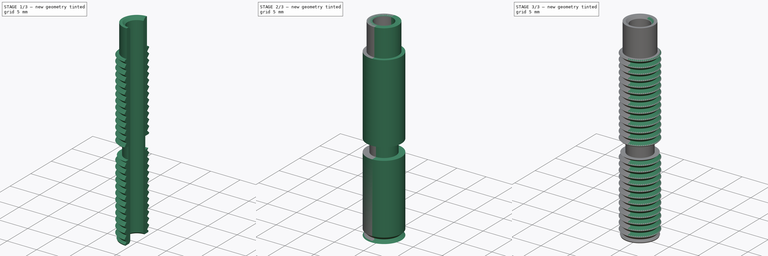
[diagram: build sequence overview — one tinted view per stage of 3, left to right]
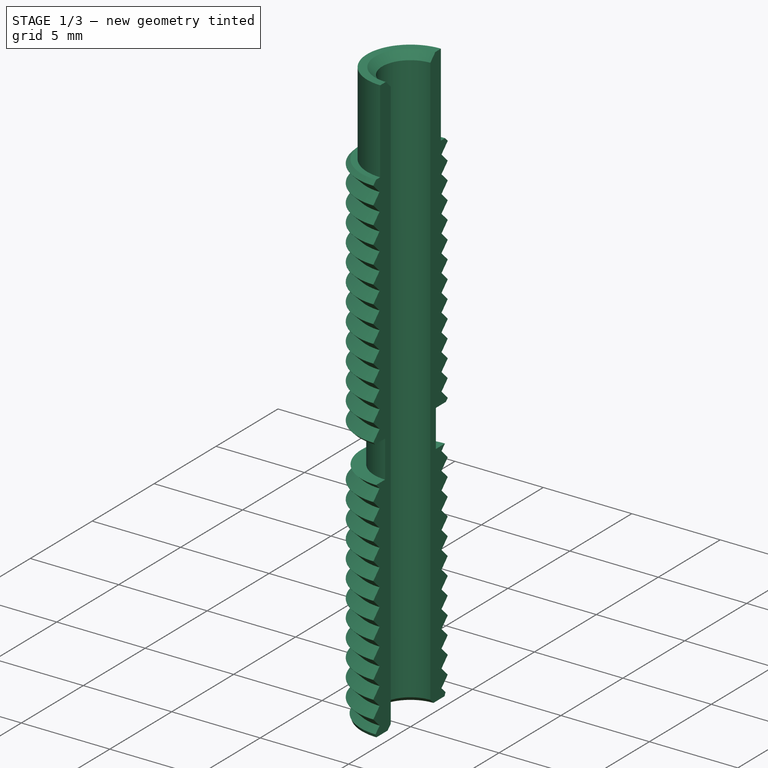
[diagram: stage 1 of 3 — iso view after this stage's code; geometry added in this stage tinted green]
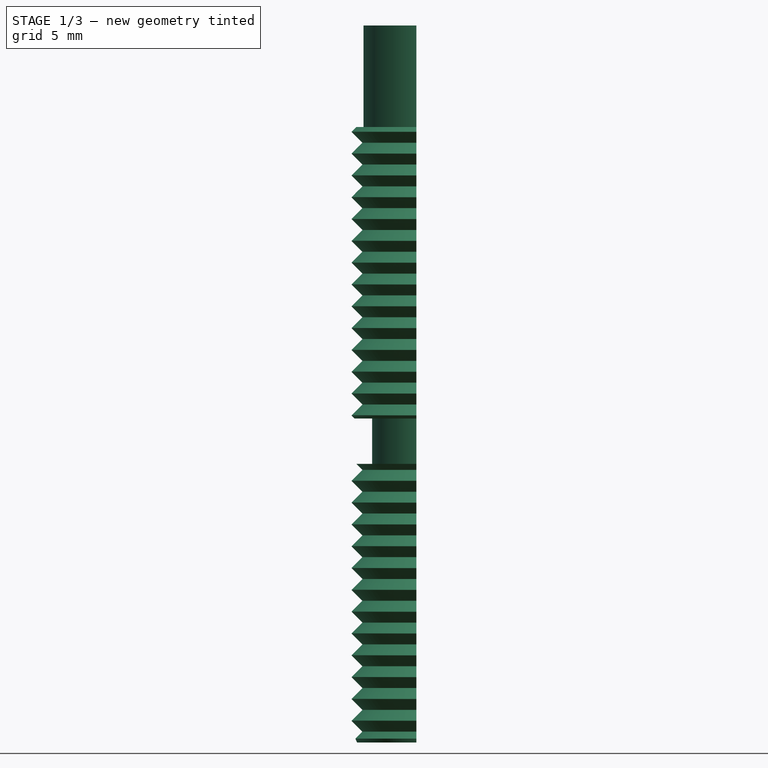
[diagram: stage 1 of 3 — front view after this stage's code; geometry added in this stage tinted green]
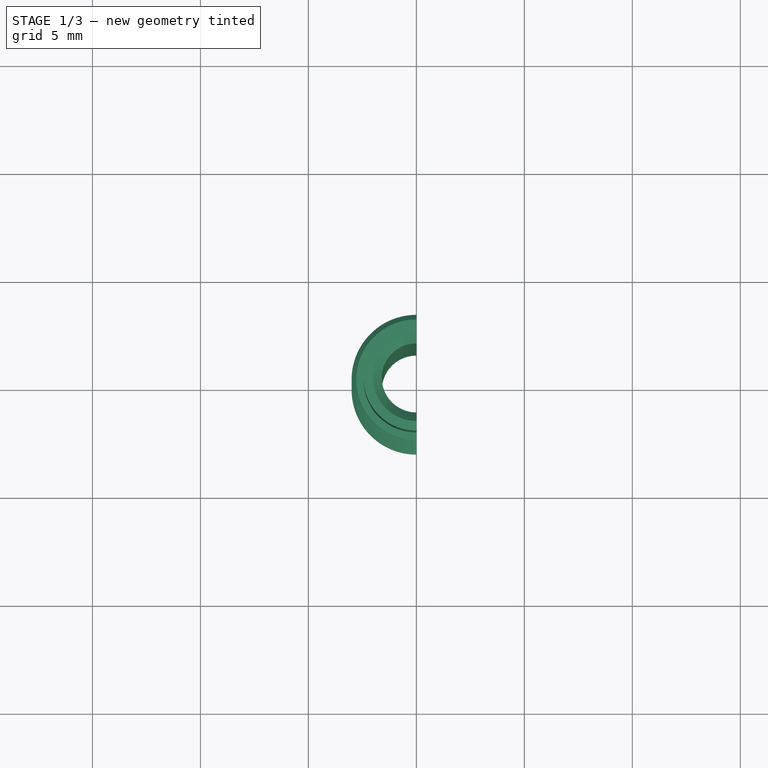
[diagram: stage 1 of 3 — top view after this stage's code; geometry added in this stage tinted green]
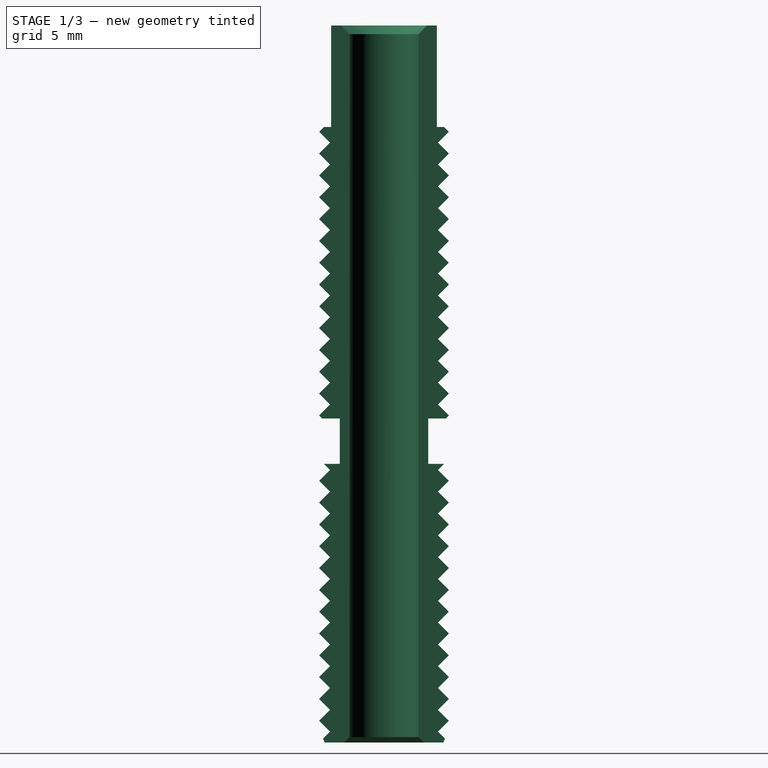
[diagram: stage 1 of 3 — right view after this stage's code; geometry added in this stage tinted green]
FCSTD DOCUMENT  (FreeCAD 0.17R13662 (Git))
Label: MOARstruder-heatbreak_PP-MP0152_revA
License: All rights reserved
LicenseURL: http://en.wikipedia.org/wiki/All_rights_reserved
objects: Drawing::FeatureView×39, Sketcher::SketchObject×4, Drawing::FeatureViewPart×4, PartDesign::LinearPattern×2, PartDesign::Chamfer×2, PartDesign::Pocket×2, PartDesign::Revolution×1, PartDesign::Groove×1, PartDesign::Body×1, Drawing::FeaturePage×1
note: 17 computed .brp shape members not serialized (recipe doc carries the construction recipe); baked Part::Feature solids carry a one-line shape summary decoded from their .brp

FEATURE [Sketcher::SketchObject] Sketch002
  MapMode = 5
  Placement = pos=(0,0,33.2) rot=(0,0,1;3.14159rad)
  sketch-geometry (4):
    g0: LineSegment StartX=0 StartY=-5 StartZ=0 EndX=-5 EndY=-5 EndZ=0
    g1: LineSegment StartX=-5 StartY=-5 StartZ=0 EndX=-5 EndY=5 EndZ=0
    g2: LineSegment StartX=-5 StartY=5 StartZ=0 EndX=0 EndY=5 EndZ=0
    g3: LineSegment StartX=0 StartY=5 StartZ=0 EndX=0 EndY=-5 EndZ=0
  constraints (12):
    c: Coincident(g0,g1)
    c: Coincident(g1,g2)
    c: Coincident(g2,g3)
    c: Coincident(g3,g0)
    c: Horizontal(g0)
    c: Horizontal(g2)
    c: Vertical(g1)
    c: Vertical(g3)
    c: PointOnObject(g0,g-2)
    c: Symmetric(g0,g2,g-1)
    c: DistanceY(g3,g3) = 10
    c: DistanceX(g2,g2) = 5
FEATURE [PartDesign::Pocket] Pocket
  Length = 5
  Length2 = 100
  Placement = pos=(0,0,0) rot=(1,0,0;1.5708rad)
  Type = 1
FEATURE [Sketcher::SketchObject] Sketch003
  MapMode = 5
  Placement = pos=(0,0,0) rot=(0.707107,0,0.707107;3.14159rad)
  sketch-geometry (4):
    g0: LineSegment StartX=1.5 StartY=4 StartZ=0 EndX=0.5 EndY=4 EndZ=0
    g1: LineSegment StartX=0.5 StartY=4 StartZ=0 EndX=-7.5 EndY=-4 EndZ=0
    g2: LineSegment StartX=-7.5 StartY=-4 StartZ=0 EndX=-6.5 EndY=-4 EndZ=0
    g3: LineSegment StartX=-6.5 StartY=-4 StartZ=0 EndX=1.5 EndY=4 EndZ=0
  constraints (12):
    c: Coincident(g0,g1)
    c: Coincident(g1,g2)
    c: Coincident(g2,g3)
    c: Coincident(g3,g0)
    c: Horizontal(g0)
    c: Horizontal(g2)
    c: Parallel(g3,g1)
    c: DistanceX(g2,g2) = 1
    c: DistanceY(g0) = 4
    c: DistanceY(g2) = -4
    c: Angle(g-1,g3) = 0.785398
    c: DistanceX(g0) = 0.5
FEATURE [PartDesign::Pocket] Pocket001
  Length = 0.001
  Length2 = 100
  Placement = pos=(0,0,0) rot=(1,0,0;1.5708rad)
  Type = 0
FEATURE [PartDesign::LinearPattern] LinearPattern001
  Length = 40
  Occurrences = 20
  Originals = -> [Pocket001]
  Placement = pos=(0,0,0) rot=(1,0,0;1.5708rad)
FEATURE [PartDesign::Body] Body
  Group = -> [Sketch,Revolution,Sketch001,Groove,LinearPattern,Chamfer,Chamfer001,Sketch002,Pocket,Sketch003,Pocket001,LinearPattern001]
FEATURE [Drawing::FeatureViewPart] Ortho  label="Ortho_0_0"
  Direction = (1,0,0)
  HiddenWidth = 0.15
  LineWidth = 0.35
  Rotation = -90
  Scale = 4
  ShowHiddenLines = false
  ShowSmoothLines = false
  Source = -> Chamfer001
  Tolerance = 0.05
  ViewResult = <blob: 56096 chars omitted>
  Visible = false
  X = 50
  Y = 192.47
FEATURE [Drawing::FeatureViewPart] Ortho001  label="Ortho_0_1"
  Direction = (0,0,1)
  HiddenWidth = 0.15
  LineWidth = 0.35
  Rotation = 90
  Scale = 4
  ShowHiddenLines = false
  ShowSmoothLines = false
  Source = -> Chamfer001
  Tolerance = 0.05
  ViewResult = <g id="Ortho_0_1"\n   transform="rotate(90,50,35) translate(50,35) scale(4,4)"\n  >\n<g   stroke="rgb(0, 0, 0)"\n   stroke-width="0.0875"\n   stroke-linecap="butt"\n   stroke-linejoin="miter"\n   fill="none"\n   transform="scale(1,-1)"\n  >\n<circle cx ="0" cy ="2.913e-14" r ="1.6" /><circle cx ="0" cy ="2.949e-14" r ="2" /><circle cx ="0" cy ="1.474e-14" r ="2.45" /><circle cx ="-9.42e-15" cy ="1.58e-14" r ="2.78283" /><circle cx ="-9e-15" cy ="1.6e-14" r ="3" /></g>\n</g>
  Visible = false
  X = 50
  Y = 35
FEATURE [Drawing::FeatureViewPart] Ortho002  label="Ortho_0_002"
  Direction = (1,0,0)
  HiddenWidth = 0.15
  LineWidth = 0.35
  Rotation = -90
  Scale = 4
  ShowHiddenLines = false
  ShowSmoothLines = false
  Source = -> LinearPattern001
  Tolerance = 0.05
  ViewResult = <blob: 62117 chars omitted>
  Visible = false
  X = 110
  Y = 192.4
FEATURE [Drawing::FeatureViewPart] View
  Direction = (-1,-1,1)
  HiddenWidth = 0.15
  LineWidth = 0.35
  Rotation = 0
  Scale = 2
  ShowHiddenLines = false
  ShowSmoothLines = false
  Source = -> Chamfer001
  Tolerance = 0.05
  ViewResult = <blob: 23826 chars omitted>
  Visible = false
  X = 200
  Y = 60
FEATURE [Drawing::FeatureView] centerLines002
  Rotation = 0
  ViewResult = <g transform="scale(4.000000,4.000000)" stroke="rgb(0,0,255)"  stroke-width="0.075000" > <path d="M 12.500000,8.750000 L 12.500000,8.250000 M 12.500000,7.750000 L 12.500000,6.250000 M 12.500000,5.750000 L 12.500000,5.250000 "/>\n<path d="M 12.500000,8.750000 L 13.000000,8.750000 M 13.500000,8.750000 L 15.000000,8.750000 M 15.500000,8.750000 L 16.000000,8.750000 M 16.500000,8.750000 L 16.696698,8.750000 "/>\n<path d="M 12.500000,8.750000 L 12.500000,9.250000 M 12.500000,9.750000 L 12.500000,11.250000 M 12.500000,11.750000 L 12.500000,12.215333 "/>\n<path d="M 12.500000,8.750000 L 12.000000,8.750000 M 11.500000,8.750000 L 10.000000,8.750000 M 9.500000,8.750000 L 9.000000,8.750000 "/> </g> 
  Visible = false
  X = 0
  Y = 0
FEATURE [Drawing::FeatureView] dim001
  Rotation = 0
  ViewResult = <g> <line x1="103.600000" y1="63.263200" x2="103.600000" y2="43.538109" style="stroke:rgb(0,0,255);stroke-width:0.20" />\n<line x1="116.400000" y1="63.642000" x2="116.400000" y2="43.538109" style="stroke:rgb(0,0,255);stroke-width:0.20" />\n<line x1="103.600000" y1="44.538109" x2="116.400000" y2="44.538109" style="stroke:rgb(0,0,255);stroke-width:0.20" />\n<polygon points="103.600000,44.538109 106.600000,45.288109 106.600000,44.538109 106.600000,43.788109" style="fill:rgb(0,0,255);stroke:rgb(0,0,255);stroke-width:0" />\n<polygon points="116.400000,44.538109 113.400000,43.788109 113.400000,44.538109 113.400000,45.288109" style="fill:rgb(0,0,255);stroke:rgb(0,0,255);stroke-width:0" />\n<text x="93.096743" y="45.970131" font-family="Verdana" font-size="3" fill="rgb(0,0,0)" text-anchor="middle"  >3.2000</text> </g> 
  Visible = false
  X = 0
  Y = 0
FEATURE [Drawing::FeatureView] dim002
  Rotation = 0
  ViewResult = <g> <line x1="100.200000" y1="64.284400" x2="100.200000" y2="53.068898" style="stroke:rgb(0,0,255);stroke-width:0.20" />\n<line x1="119.800000" y1="62.621200" x2="119.800000" y2="53.068898" style="stroke:rgb(0,0,255);stroke-width:0.20" />\n<line x1="100.200000" y1="54.068898" x2="119.800000" y2="54.068898" style="stroke:rgb(0,0,255);stroke-width:0.20" />\n<polygon points="100.200000,54.068898 103.200000,54.818898 103.200000,54.068898 103.200000,53.318898" style="fill:rgb(0,0,255);stroke:rgb(0,0,255);stroke-width:0" />\n<polygon points="119.800000,54.068898 116.800000,53.318898 116.800000,54.068898 116.800000,54.818898" style="fill:rgb(0,0,255);stroke:rgb(0,0,255);stroke-width:0" />\n<text x="89.916419" y="54.932861" font-family="Verdana" font-size="3" fill="rgb(0,0,0)" text-anchor="middle"  >4.9</text> </g> 
  Visible = false
  X = 0
  Y = 0
FEATURE [Drawing::FeatureView] dim003
  Rotation = 0
  ViewResult = <g> <line x1="101.800000" y1="137.035417" x2="118.200000" y2="137.035417" style="stroke:rgb(0,0,255);stroke-width:0.20" />\n<polygon points="101.800000,137.035417 104.800000,137.785417 104.800000,137.035417 104.800000,136.285417" style="fill:rgb(0,0,255);stroke:rgb(0,0,255);stroke-width:0" />\n<polygon points="118.200000,137.035417 115.200000,136.285417 115.200000,137.035417 115.200000,137.785417" style="fill:rgb(0,0,255);stroke:rgb(0,0,255);stroke-width:0" />\n<text x="95.409705" y="137.910392" font-family="Verdana" font-size="3" fill="rgb(0,0,0)" text-anchor="middle"  >4.100</text> </g> 
  Visible = false
  X = 0
  Y = 0
FEATURE [Drawing::FeatureView] dim004
  Rotation = 0
  ViewResult = <g> \n  <line x1="39.170520" y1="59.670000" x2="23.334294" y2="59.670000" style="stroke:rgb(0,0,255);stroke-width:0.20" />\n<line x1="37.207320" y1="132.470000" x2="23.334294" y2="132.470000" style="stroke:rgb(0,0,255);stroke-width:0.20" />\n<line x1="24.334294" y1="59.670000" x2="24.334294" y2="132.470000" style="stroke:rgb(0,0,255);stroke-width:0.20" /> \n  <polygon points="24.334294,132.470000 25.084294,129.470000 24.334294,129.470000 23.584294,129.470000" style="fill:rgb(0,0,255);stroke:rgb(0,0,255);stroke-width:0" /><polygon points="24.334294,59.670000 23.584294,62.670000 24.334294,62.670000 25.084294,62.670000" style="fill:rgb(0,0,255);stroke:rgb(0,0,255);stroke-width:0" /> \n  <text x="23.334294" y="96.070000" font-family="Verdana" font-size="3" fill="rgb(0,0,0)" text-anchor="middle" transform="rotate(-90.000000 23.334294,96.070000)" >18.20</text> </g>
  Visible = false
  X = 0
  Y = 0
FEATURE [Drawing::FeatureView] dim005
  Rotation = 0
  ViewResult = <g> \n  <line x1="38.089360" y1="192.470000" x2="23.380761" y2="192.470000" style="stroke:rgb(0,0,255);stroke-width:0.20" />\n<line x1="37.698000" y1="132.470000" x2="23.380761" y2="132.470000" style="stroke:rgb(0,0,255);stroke-width:0.20" />\n<line x1="24.380761" y1="192.470000" x2="24.380761" y2="132.470000" style="stroke:rgb(0,0,255);stroke-width:0.20" /> \n  <polygon points="24.380761,132.470000 23.630761,135.470000 24.380761,135.470000 25.130761,135.470000" style="fill:rgb(0,0,255);stroke:rgb(0,0,255);stroke-width:0" /><polygon points="24.380761,192.470000 25.130761,189.470000 24.380761,189.470000 23.630761,189.470000" style="fill:rgb(0,0,255);stroke:rgb(0,0,255);stroke-width:0" /> \n  <text x="23.380761" y="162.470000" font-family="Verdana" font-size="3" fill="rgb(0,0,0)" text-anchor="middle" transform="rotate(-90.000000 23.380761,162.470000)" >15.00</text> </g>
  Visible = false
  X = 0
  Y = 0
FEATURE [Drawing::FeatureView] dim006
  Rotation = 0
  ViewResult = <g> \n  <line x1="37.207320" y1="132.470000" x2="30.697166" y2="132.470000" style="stroke:rgb(0,0,255);stroke-width:0.20" />\n<line x1="38.588520" y1="140.870000" x2="30.697166" y2="140.870000" style="stroke:rgb(0,0,255);stroke-width:0.20" />\n<line x1="31.697166" y1="132.470000" x2="31.697166" y2="140.870000" style="stroke:rgb(0,0,255);stroke-width:0.20" /> \n  <polygon points="31.697166,140.870000 32.447166,137.870000 31.697166,137.870000 30.947166,137.870000" style="fill:rgb(0,0,255);stroke:rgb(0,0,255);stroke-width:0" /><polygon points="31.697166,132.470000 30.947166,135.470000 31.697166,135.470000 32.447166,135.470000" style="fill:rgb(0,0,255);stroke:rgb(0,0,255);stroke-width:0" /> \n  <text x="32.959716" y="145.716641" font-family="Verdana" font-size="3" fill="rgb(0,0,0)" text-anchor="middle" transform="rotate(-90.000000 32.959716,145.716641)" >2.10</text> </g>
  Visible = false
  X = 0
  Y = 0
FEATURE [Drawing::FeatureView] dim007
  Rotation = 0
  ViewResult = <g> \n  <line x1="36.637560" y1="132.470000" x2="30.671544" y2="132.470000" style="stroke:rgb(0,0,255);stroke-width:0.20" />\n<line x1="38.574840" y1="78.470000" x2="30.671544" y2="78.470000" style="stroke:rgb(0,0,255);stroke-width:0.20" />\n<line x1="31.671544" y1="132.470000" x2="31.671544" y2="78.470000" style="stroke:rgb(0,0,255);stroke-width:0.20" /> \n  <polygon points="31.671544,78.470000 30.921544,81.470000 31.671544,81.470000 32.421544,81.470000" style="fill:rgb(0,0,255);stroke:rgb(0,0,255);stroke-width:0" /><polygon points="31.671544,132.470000 32.421544,129.470000 31.671544,129.470000 30.921544,129.470000" style="fill:rgb(0,0,255);stroke:rgb(0,0,255);stroke-width:0" /> \n  <text x="30.671544" y="105.470000" font-family="Verdana" font-size="3" fill="rgb(0,0,0)" text-anchor="middle" transform="rotate(-90.000000 30.671544,105.470000)" >13.5</text> </g>
  Visible = false
  X = 0
  Y = 0
FEATURE [Drawing::FeatureView] dimLine001
  Rotation = 0
  ViewResult = <g   >\n<line x1="127.457612" y1="49.409712" x2="117.811240" y2="59.788600" style="stroke:rgb(0,0,255);stroke-width:0.20" />\n<polygon points="117.811240,59.788600 120.402959,58.101742 119.853597,57.591152 119.304235,57.080563" style="fill:rgb(0,0,255);stroke:rgb(0,0,255);stroke-width:0" />\n<line x1="127.457612" y1="49.409712" x2="154.593178" y2="49.409712" style="stroke:rgb(0,0,255);stroke-width:0.20" />\n</g> 
  Visible = false
  X = 0
  Y = 0
FEATURE [Drawing::FeatureView] dimText001
  Rotation = 0
  ViewResult = <g> <text x="131.700306" y="48.437428" font-family="inherit" font-size="3" fill="rgb(0,0,0)" text-anchor="inherit"  >CSK 0.40</text> </g>
  Visible = false
  X = 0
  Y = 0
FEATURE [Drawing::FeatureView] dimLine002
  Rotation = 0
  ViewResult = <g   >\n<line x1="133.236280" y1="80.471822" x2="121.026240" y2="90.416200" style="stroke:rgb(0,0,255);stroke-width:0.20" />\n<polygon points="121.026240,90.416200 123.825993,89.103234 123.352369,88.521701 122.878744,87.940169" style="fill:rgb(0,0,255);stroke:rgb(0,0,255);stroke-width:0" />\n<line x1="133.236280" y1="80.471822" x2="159.498043" y2="80.471822" style="stroke:rgb(0,0,255);stroke-width:0.20" />\n</g> 
  Visible = false
  X = 0
  Y = 0
FEATURE [Drawing::FeatureView] dimLine003
  Rotation = 0
  ViewResult = <g   >\n<line x1="134.681882" y1="142.632691" x2="121.317200" y2="155.353580" style="stroke:rgb(0,0,255);stroke-width:0.20" />\n<polygon points="121.317200,155.353580 124.007297,153.828497 123.490213,153.285244 122.973129,152.741991" style="fill:rgb(0,0,255);stroke:rgb(0,0,255);stroke-width:0" />\n<line x1="134.681882" y1="142.632691" x2="161.184578" y2="142.632691" style="stroke:rgb(0,0,255);stroke-width:0.20" />\n</g> 
  Visible = false
  X = 0
  Y = 0
FEATURE [Drawing::FeatureView] dimText002
  Rotation = 0
  ViewResult = <g> <text x="138.295886" y="79.026221" font-family="inherit" font-size="3" fill="rgb(0,0,0)" text-anchor="inherit" transform="rotate(0.000000 138.295886,79.026221)" >M6 x 1.0</text> </g>
  Visible = false
  X = 0
  Y = 0
FEATURE [Drawing::FeatureView] dimText003
  Rotation = 0
  ViewResult = <g> <text x="141.187089" y="140.223355" font-family="inherit" font-size="3" fill="rgb(0,0,0)" text-anchor="inherit" transform="rotate(0.000000 141.187089,140.223355)" >M6 x 1.0</text> </g>
  Visible = false
  X = 0
  Y = 0
FEATURE [Drawing::FeatureView] dimText004
  Rotation = 0
  ViewResult = <g> <text x="195.000000" y="120.000000" font-family="inherit" font-size="4" fill="rgb(0,0,0)" text-anchor="inherit" transform="rotate(0.000000 195.000000,120.000000)" >Notes:</text> </g>
  Visible = false
  X = 0
  Y = 0
FEATURE [Drawing::FeatureView] dimText005
  Rotation = 0
  ViewResult = <g> <text x="195.000000" y="125.000000" font-family="inherit" font-size="3" fill="rgb(0,0,0)" text-anchor="inherit" transform="rotate(0.000000 195.000000,125.000000)" >1. Material: 303 Stainless Steel.</text> </g>
  Visible = false
  X = 0
  Y = 0
FEATURE [Drawing::FeatureView] dimText006
  Rotation = 0
  ViewResult = <g> <text x="195.000000" y="130.000000" font-family="inherit" font-size="3" fill="rgb(0,0,0)" text-anchor="inherit" transform="rotate(0.000000 195.000000,130.000000)" >2. Parts must be free from debris and oils.</text> </g>
  Visible = false
  X = 0
  Y = 0
FEATURE [Drawing::FeatureView] dimText007
  Rotation = 0
  ViewResult = <g> <text x="195.000000" y="135.000000" font-family="inherit" font-size="3" fill="rgb(0,0,0)" text-anchor="inherit" transform="rotate(0.000000 195.000000,135.000000)" >3. Parts must be RoHS compliant.</text> </g>
  Visible = false
  X = 0
  Y = 0
FEATURE [Drawing::FeatureView] dimText008
  Rotation = 0
  ViewResult = <g> <text x="195.000000" y="140.000000" font-family="inherit" font-size="3" fill="rgb(0,0,0)" text-anchor="inherit" transform="rotate(0.000000 195.000000,140.000000)" >4. Remove all burrs and shavings.</text> </g>
  Visible = false
  X = 0
  Y = 0
FEATURE [Drawing::FeatureView] dimText009
  Rotation = 0
  ViewResult = <g> <text x="140.000000" y="10.000000" font-family="inherit" font-size="4" fill="rgb(0,0,0)" text-anchor="inherit"  >Rev</text> </g>
  Visible = false
  X = 0
  Y = 0
FEATURE [Drawing::FeatureView] dimText010
  Rotation = 0
  ViewResult = <g> <text x="150.000000" y="10.000000" font-family="inherit" font-size="4" fill="rgb(0,0,0)" text-anchor="inherit"  >Date</text> </g>
  Visible = false
  X = 0
  Y = 0
FEATURE [Drawing::FeatureView] dimText011
  Rotation = 0
  ViewResult = <g> <text x="170.000000" y="10.000000" font-family="inherit" font-size="4" fill="rgb(0,0,0)" text-anchor="inherit"  >Description</text> </g>
  Visible = false
  X = 0
  Y = 0
FEATURE [Drawing::FeatureView] dimText012
  Rotation = 0
  ViewResult = <g> <text x="140.000000" y="15.000000" font-family="inherit" font-size="3" fill="rgb(0,0,0)" text-anchor="inherit" transform="rotate(0.000000 140.000000,15.000000)" >A</text> </g>
  Visible = false
  X = 0
  Y = 0
FEATURE [Drawing::FeatureView] dimText013
  Rotation = 0
  ViewResult = <g> <text x="150.000000" y="15.000000" font-family="inherit" font-size="3" fill="rgb(0,0,0)" text-anchor="inherit" transform="rotate(0.000000 150.000000,15.000000)" >10.07.16</text> </g>
  Visible = false
  X = 0
  Y = 0
FEATURE [Drawing::FeatureView] dimText014
  Rotation = 0
  ViewResult = <g> <text x="170.000000" y="15.000000" font-family="inherit" font-size="3" fill="rgb(0,0,0)" text-anchor="inherit" transform="rotate(0.000000 170.000000,15.000000)" >Dimensions modified based on mfr. produced samples</text> </g>
  Visible = false
  X = 0
  Y = 0
FEATURE [Drawing::FeatureView] dimText015
  Rotation = 0
  ViewResult = <g> <text x="140.000000" y="20.000000" font-family="inherit" font-size="3" fill="rgb(0,0,0)" text-anchor="inherit" transform="rotate(0.000000 140.000000,20.000000)" >IR</text> </g>
  Visible = false
  X = 0
  Y = 0
FEATURE [Drawing::FeatureView] dimText016
  Rotation = 0
  ViewResult = <g> <text x="150.000000" y="20.000000" font-family="inherit" font-size="3" fill="rgb(0,0,0)" text-anchor="inherit" transform="rotate(0.000000 150.000000,20.000000)" >05.21.16</text> </g>
  Visible = false
  X = 0
  Y = 0
FEATURE [Drawing::FeatureView] dimText017
  Rotation = 0
  ViewResult = <g> <text x="170.000000" y="20.000000" font-family="inherit" font-size="3" fill="rgb(0,0,0)" text-anchor="inherit" transform="rotate(0.000000 170.000000,20.000000)" >Initial release</text> </g>
  Visible = false
  X = 0
  Y = 0
FEATURE [Drawing::FeatureView] dimText018
  Rotation = 0
  ViewResult = <g > <text x="98.590029" y="54.932861" font-family="Verdana" font-size="2.4" fill="rgb(0,0,0)" text-anchor="end" transform="rotate(0.000000 98.590029,54.932861)" >-0.1</text> \n <text x="98.590029" y="52.532861" font-family="Verdana" font-size="2.4" fill="rgb(0,0,0)" text-anchor="end" transform="rotate(0.000000 98.590029,52.532861)" >+0.0</text> </g> 
  Visible = false
  X = 0
  Y = 0
FEATURE [Drawing::FeatureView] dimText019
  Rotation = 0
  ViewResult = <g > <text x="30.671544" y="95.409705" font-family="Verdana" font-size="2.4" fill="rgb(0,0,0)" text-anchor="end" transform="rotate(-90.000000 30.671544,95.409705)" >-0.5</text> \n <text x="28.271544" y="95.409705" font-family="Verdana" font-size="2.4" fill="rgb(0,0,0)" text-anchor="end" transform="rotate(-90.000000 28.271544,95.409705)" >+0.0</text> </g> 
  Visible = false
  X = 0
  Y = 0
FEATURE [Drawing::FeatureView] centerLines001
  Rotation = 0
  ViewResult = <g transform="scale(4.000000,4.000000)" stroke="rgb(0,0,255)"  stroke-width="0.075000" > <path d="M 12.500000,17.267500 L 12.500000,16.767500 M 12.500000,16.267500 L 12.500000,14.767500 M 12.500000,14.267500 L 12.500000,13.767500 M 12.500000,13.267500 L 12.500000,13.010414 "/>\n<path d="M 12.500000,17.267500 L 12.500000,17.767500 M 12.500000,18.267500 L 12.500000,19.767500 M 12.500000,20.267500 L 12.500000,20.767500 M 12.500000,21.267500 L 12.500000,22.767500 M 12.500000,23.267500 L 12.500000,23.767500 M 12.500000,24.267500 L 12.500000,25.767500 M 12.500000,26.267500 L 12.500000,26.767500 M 12.500000,27.267500 L 12.500000,28.767500 M 12.500000,29.267500 L 12.500000,29.767500 M 12.500000,30.267500 L 12.500000,31.767500 M 12.500000,32.267500 L 12.500000,32.767500 M 12.500000,33.267500 L 12.500000,34.767500 M 12.500000,35.267500 L 12.500000,35.767500 M 12.500000,36.267500 L 12.500000,37.767500 M 12.500000,38.267500 L 12.500000,38.767500 M 12.500000,39.267500 L 12.500000,40.767500 M 12.500000,41.267500 L 12.500000,41.767500 M 12.500000,42.267500 L 12.500000,43.767500 M 12.500000,44.267500 L 12.500000,44.767500 M 12.500000,45.267500 L 12.500000,46.767500 M 12.500000,47.267500 L 12.500000,47.767500 M 12.500000,48.267500 L 12.500000,49.767500 M 12.500000,50.267500 L 12.500000,50.596056 "/> </g> 
  Visible = false
  X = 0
  Y = 0
FEATURE [Drawing::FeatureView] grabPoint001
  Rotation = 0
  ViewResult = <g> <line x1="50.0" y1="55.0" x2="50.0" y2="55.0" style="stroke:rgb(0,0,0);stroke-width:0.01" /> </g> 
  Visible = false
  X = 0
  Y = 0
FEATURE [Drawing::FeatureView] grabPoint002
  Rotation = 0
  ViewResult = <g> <line x1="50.0" y1="200.0" x2="50.0" y2="200.0" style="stroke:rgb(0,0,0);stroke-width:0.01" /> </g> 
  Visible = false
  X = 0
  Y = 0
FEATURE [Drawing::FeatureView] dimLine004
  Rotation = 0
  ViewResult = <g   >\n<line x1="70.000000" y1="55.000000" x2="50.000000" y2="55.000000" style="stroke:rgb(0,0,0);stroke-width:0.50" />\n<polygon points="50.000000,55.000000 53.000000,56.000000 53.000000,55.000000 53.000000,54.000000" style="fill:rgb(0,0,0);stroke:rgb(0,0,0);stroke-width:0" />\n<line x1="70.000000" y1="55.000000" x2="70.000000" y2="55.000000" style="stroke:rgb(0,0,0);stroke-width:0.50" />\n</g> 
  Visible = false
  X = 0
  Y = 0
FEATURE [Drawing::FeatureView] dimLine005
  Rotation = 0
  ViewResult = <g   >\n<line x1="70.000000" y1="200.000000" x2="50.000000" y2="200.000000" style="stroke:rgb(0,0,0);stroke-width:0.50" />\n<polygon points="50.000000,200.000000 53.000000,201.000000 53.000000,200.000000 53.000000,199.000000" style="fill:rgb(0,0,0);stroke:rgb(0,0,0);stroke-width:0" />\n<line x1="70.000000" y1="200.000000" x2="70.000000" y2="200.000000" style="stroke:rgb(0,0,0);stroke-width:0.50" />\n</g> 
  Visible = false
  X = 0
  Y = 0
FEATURE [Drawing::FeatureView] dimText020
  Rotation = 0
  ViewResult = <g> <text x="71.412719" y="56.089342" font-family="inherit" font-size="4" fill="rgb(0,0,0)" text-anchor="inherit" transform="rotate(0.000000 71.412719,56.089342)" >A</text> </g>
  Visible = false
  X = 0
  Y = 0
FEATURE [Drawing::FeatureView] dimText021
  Rotation = 0
  ViewResult = <g> <text x="71.123599" y="200.938622" font-family="inherit" font-size="4" fill="rgb(0,0,0)" text-anchor="inherit" transform="rotate(0.000000 71.123599,200.938622)" >A</text> </g>
  Visible = false
  X = 0
  Y = 0
FEATURE [Drawing::FeatureView] dimText022
  Rotation = 0
  ViewResult = <g> <text x="97.433548" y="202.962464" font-family="inherit" font-size="4" fill="rgb(0,0,0)" text-anchor="inherit" transform="rotate(0.000000 97.433548,202.962464)" >Section A-A</text> </g>
  Visible = false
  X = 0
  Y = 0
FEATURE [Drawing::FeatureView] dimText023
  Rotation = 0
  ViewResult = <g> <text x="195.000000" y="145.000000" font-family="inherit" font-size="3" fill="rgb(0,0,0)" text-anchor="inherit" transform="rotate(0.000000 195.000000,145.000000)" >5. Threads do not need to align.</text> </g>
  Visible = false
  X = 0
  Y = 0
FEATURE [Drawing::FeaturePage] Page
  EditableTexts = bam | 5.21.16 | 4:1 | MOARstruder-heatbreak | A | PP-MP0152_revA | 1 of 1 | See Notes
  Group = -> [Ortho,Ortho001,Ortho002,View,centerLines001,centerLines002,dim001,dim002,dim003,dim004,dim005,dim006,dim007,dimLine001,dimText001,dimLine002,dimLine003,dimText002,dimText003,dimText004,dimText005,dimText006,dimText007,dimText008,dimText009,dimText010,dimText011,dimText012,dimText013,dimText014,dimText015,dimText016,dimText017,dimText018,dimText019,grabPoint001,grabPoint002,dimLine004,dimLine005,+4 more]
  Template = <path>
note: 1 file-system path scrubbed to <path> (originals preserved in the JSON sidecar)
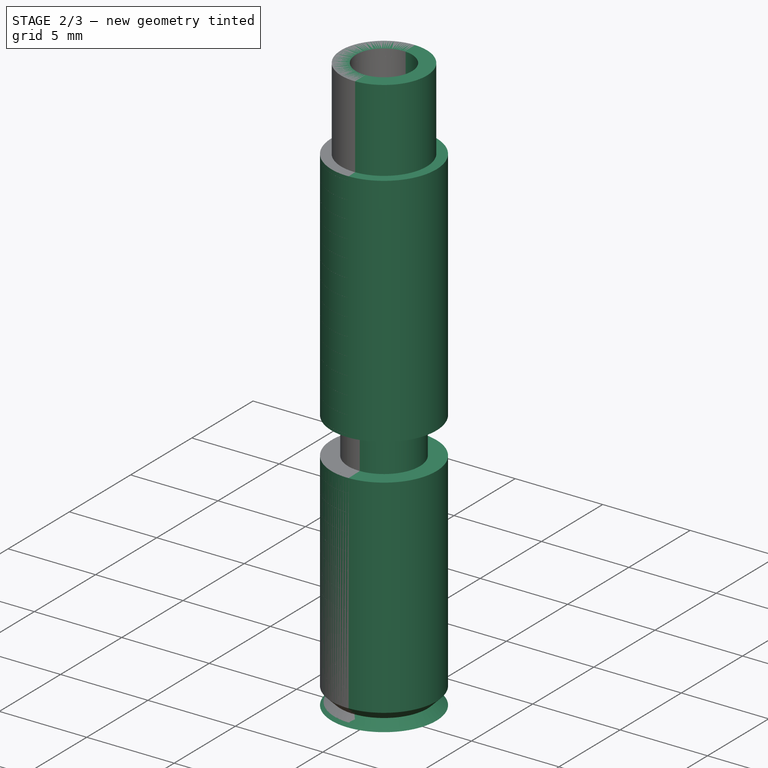
[diagram: stage 2 of 3 — iso view after this stage's code; geometry added in this stage tinted green]
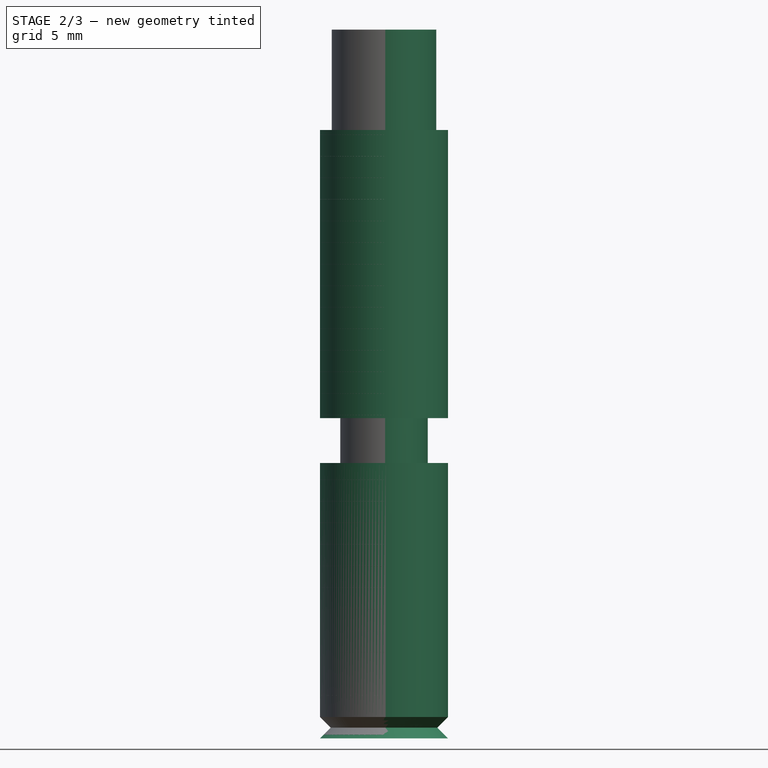
[diagram: stage 2 of 3 — front view after this stage's code; geometry added in this stage tinted green]
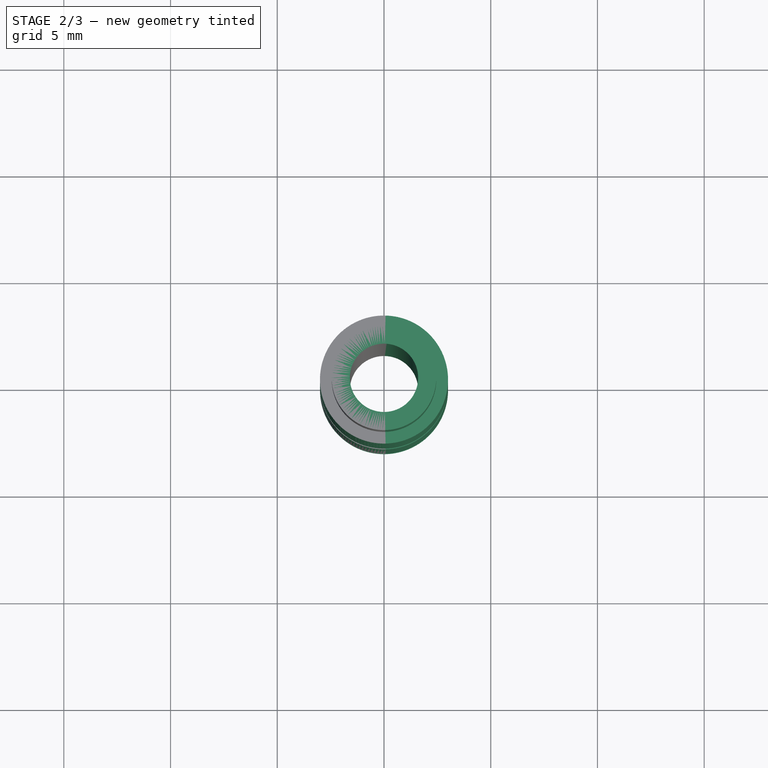
[diagram: stage 2 of 3 — top view after this stage's code; geometry added in this stage tinted green]
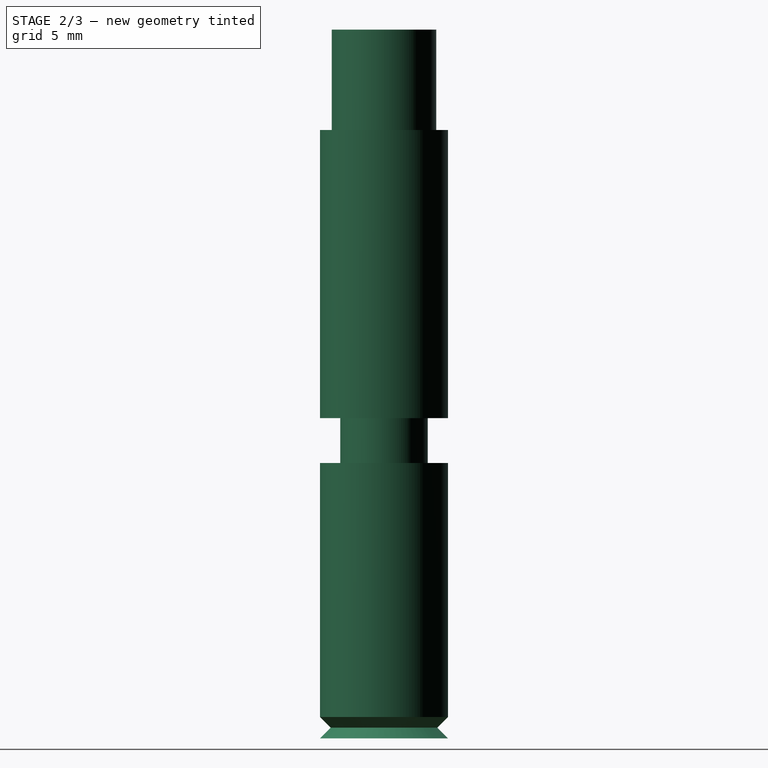
[diagram: stage 2 of 3 — right view after this stage's code; geometry added in this stage tinted green]
FEATURE [Sketcher::SketchObject] Sketch
  MapMode = 5
  Placement = pos=(0,0,0) rot=(1,0,0;1.5708rad)
  sketch-geometry (10):
    g0: LineSegment StartX=1.6 StartY=0 StartZ=0 EndX=1.6 EndY=33.2 EndZ=0
    g1: LineSegment StartX=1.6 StartY=33.2 StartZ=0 EndX=2.45 EndY=33.2 EndZ=0
    g2: LineSegment StartX=2.45 StartY=33.2 StartZ=0 EndX=2.45 EndY=28.5 EndZ=0
    g3: LineSegment StartX=2.45 StartY=28.5 StartZ=0 EndX=3 EndY=28.5 EndZ=0
    g4: LineSegment StartX=3 StartY=28.5 StartZ=0 EndX=3 EndY=15 EndZ=0
    g5: LineSegment StartX=3 StartY=15 StartZ=0 EndX=2.05 EndY=15 EndZ=0
    g6: LineSegment StartX=2.05 StartY=15 StartZ=0 EndX=2.05 EndY=12.9 EndZ=0
    g7: LineSegment StartX=2.05 StartY=12.9 StartZ=0 EndX=3 EndY=12.9 EndZ=0
    g8: LineSegment StartX=3 StartY=12.9 StartZ=0 EndX=3 EndY=0 EndZ=0
    g9: LineSegment StartX=3 StartY=0 StartZ=0 EndX=1.6 EndY=0 EndZ=0
  constraints (30):
    c: PointOnObject(g0,g-1)
    c: Vertical(g0)
    c: Coincident(g0,g1)
    c: Coincident(g1,g2)
    c: Vertical(g2)
    c: Coincident(g2,g3)
    c: Horizontal(g3)
    c: Coincident(g3,g4)
    c: Vertical(g4)
    c: Coincident(g4,g5)
    c: Horizontal(g5)
    c: Coincident(g5,g6)
    c: Vertical(g6)
    c: Coincident(g6,g7)
    c: Horizontal(g7)
    c: Coincident(g7,g8)
    c: PointOnObject(g8,g-1)
    c: Vertical(g8)
    c: Coincident(g8,g9)
    c: Coincident(g9,g0)
    c: DistanceX(g-1,g0) = 1.6
    c: PointOnObject(g4,g8)
    c: DistanceX(g-1,g5) = 2.05
    c: DistanceX(g2) = 2.45
    c: DistanceX(g3) = 3
    c: DistanceY(g6,g6) = 2.1
    c: DistanceY(g5) = 15
    c: DistanceY(g4,g4) = 13.5
    c: Horizontal(g1)
    c: DistanceY(g5,g0) = 18.2
FEATURE [PartDesign::Revolution] Revolution
  Angle = 360
  Axis = (0,0,1)
  Base = (0,0,0)
  Placement = pos=(0,0,0) rot=(1,0,0;1.5708rad)
  ReferenceAxis = -> Sketch [V_Axis]
  Reversed = true
FEATURE [Sketcher::SketchObject] Sketch001
  ExternalGeometry = -> [Revolution]
  MapMode = 5
  Placement = pos=(0,0,0) rot=(1,0,0;1.5708rad)
  sketch-geometry (3):
    g0: LineSegment StartX=3 StartY=0 StartZ=0 EndX=2.5 EndY=0.5 EndZ=0
    g1: LineSegment StartX=2.5 StartY=0.5 StartZ=0 EndX=3 EndY=1 EndZ=0
    g2: LineSegment StartX=3 StartY=1 StartZ=0 EndX=3 EndY=0 EndZ=0
  constraints (8):
    c: Coincident(g-3,g0)
    c: Coincident(g0,g1)
    c: PointOnObject(g1,g-3)
    c: Coincident(g1,g2)
    c: Coincident(g2,g0)
    c: Equal(g1,g0)
    c: DistanceX(g0,g1) = 0.5
    c: DistanceY(g0,g1) = 1
FEATURE [PartDesign::Groove] Groove
  Angle = 360
  Axis = (0,0,1)
  Base = (0,0,0)
  Placement = pos=(0,0,0) rot=(1,0,0;1.5708rad)
  ReferenceAxis = -> Sketch001 [V_Axis]
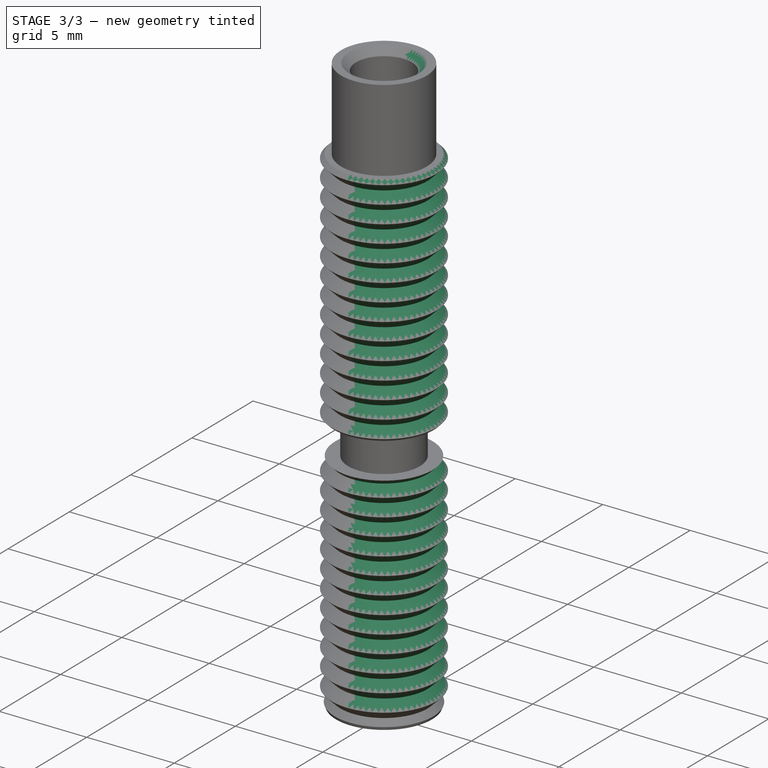
[diagram: stage 3 of 3 — iso view after this stage's code; geometry added in this stage tinted green]
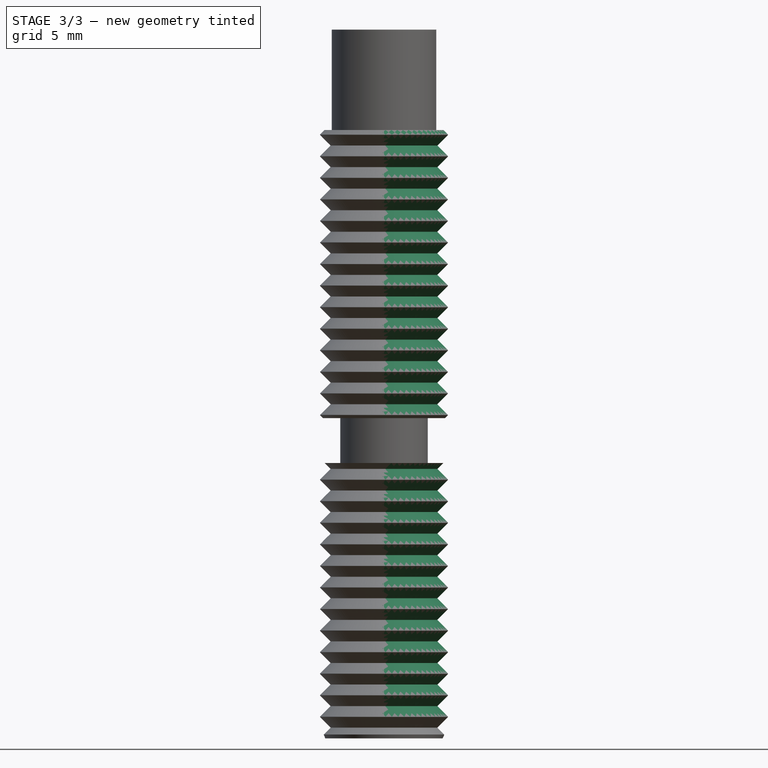
[diagram: stage 3 of 3 — front view after this stage's code; geometry added in this stage tinted green]
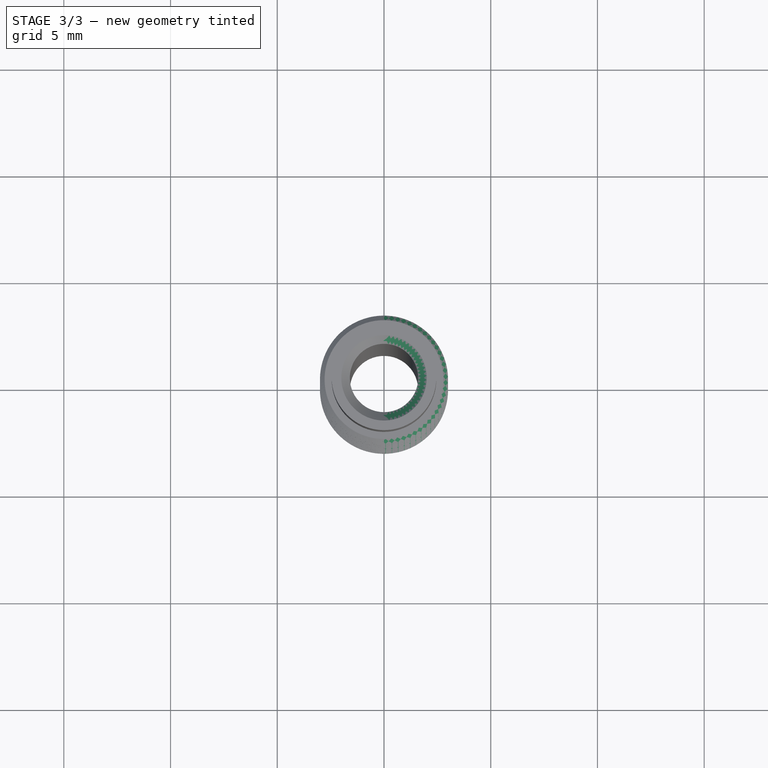
[diagram: stage 3 of 3 — top view after this stage's code; geometry added in this stage tinted green]
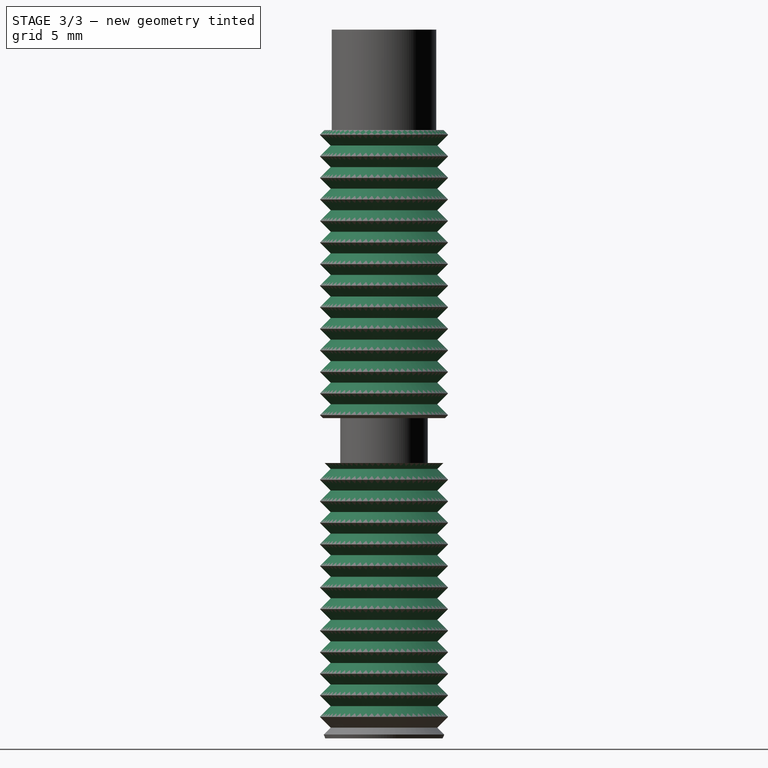
[diagram: stage 3 of 3 — right view after this stage's code; geometry added in this stage tinted green]
FEATURE [PartDesign::LinearPattern] LinearPattern
  Length = 100
  Occurrences = 100
  Originals = -> [Groove]
  Placement = pos=(0,0,0) rot=(1,0,0;1.5708rad)
FEATURE [PartDesign::Chamfer] Chamfer
  Base = -> LinearPattern [Edge2]
  Placement = pos=(0,0,0) rot=(1,0,0;1.5708rad)
  Size = 0.4
FEATURE [PartDesign::Chamfer] Chamfer001
  Base = -> Chamfer [Face3]
  Placement = pos=(0,0,0) rot=(1,0,0;1.5708rad)
  Size = 0.25
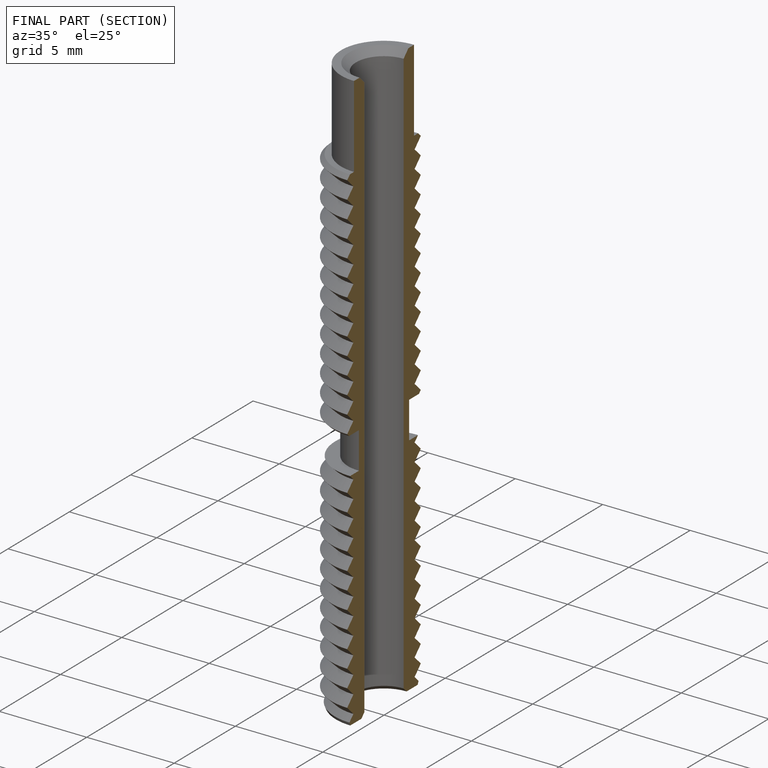
[diagram: finished part — half-section view (interior)]
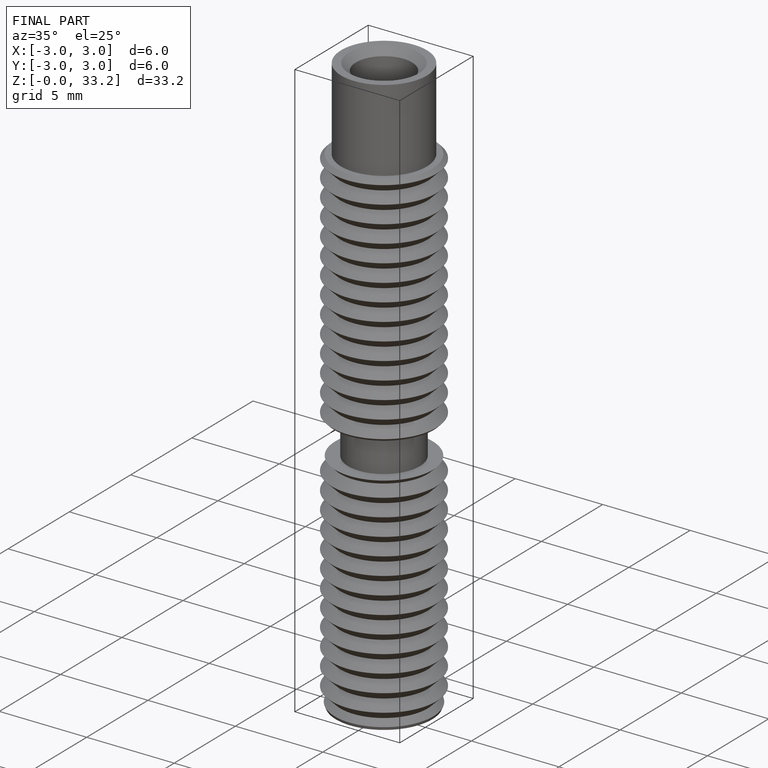
[diagram: finished part — iso view with bounding-box wireframe]
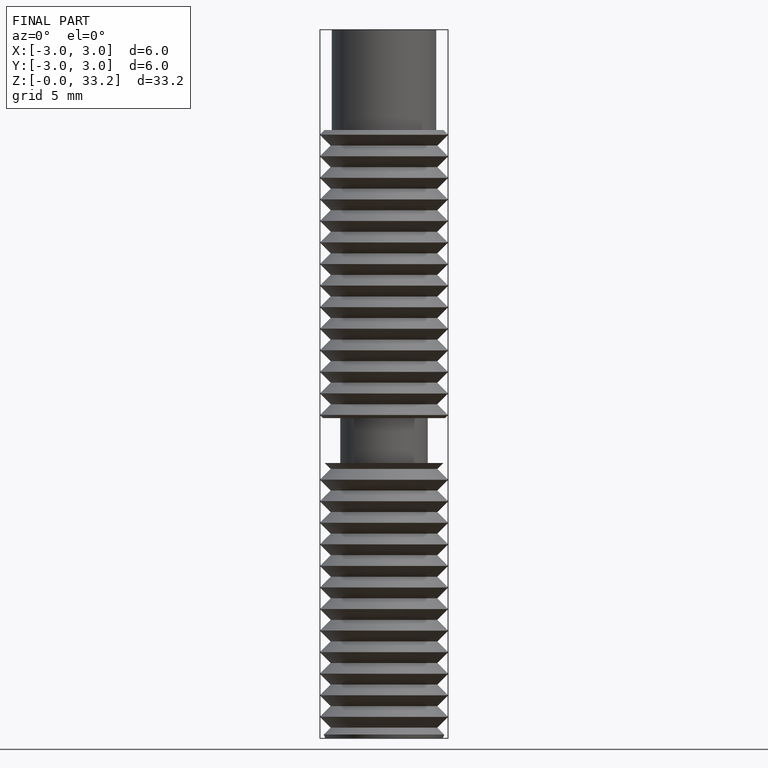
[diagram: finished part — front view with bounding-box wireframe]
